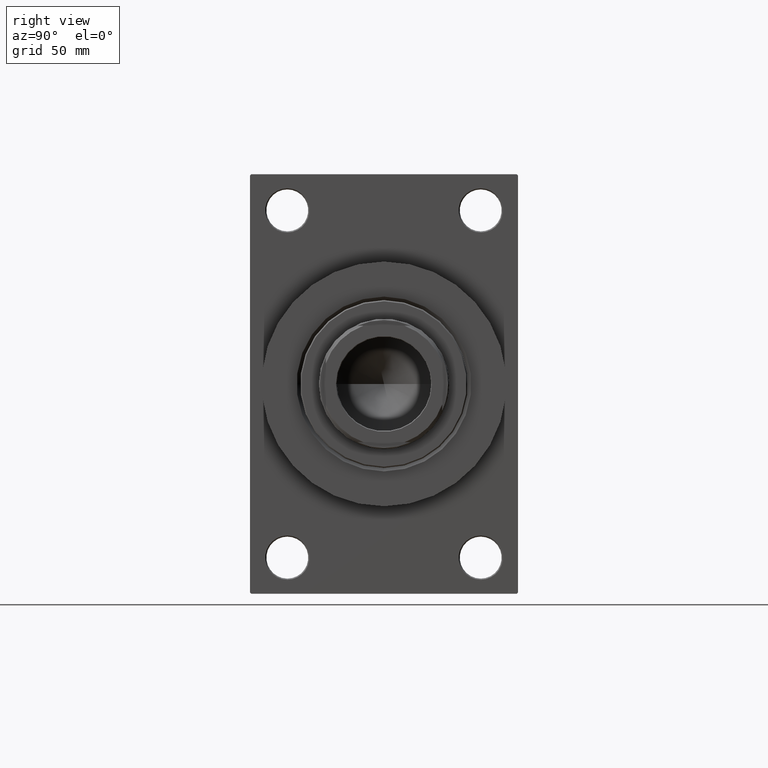
[diagram: clean part render]
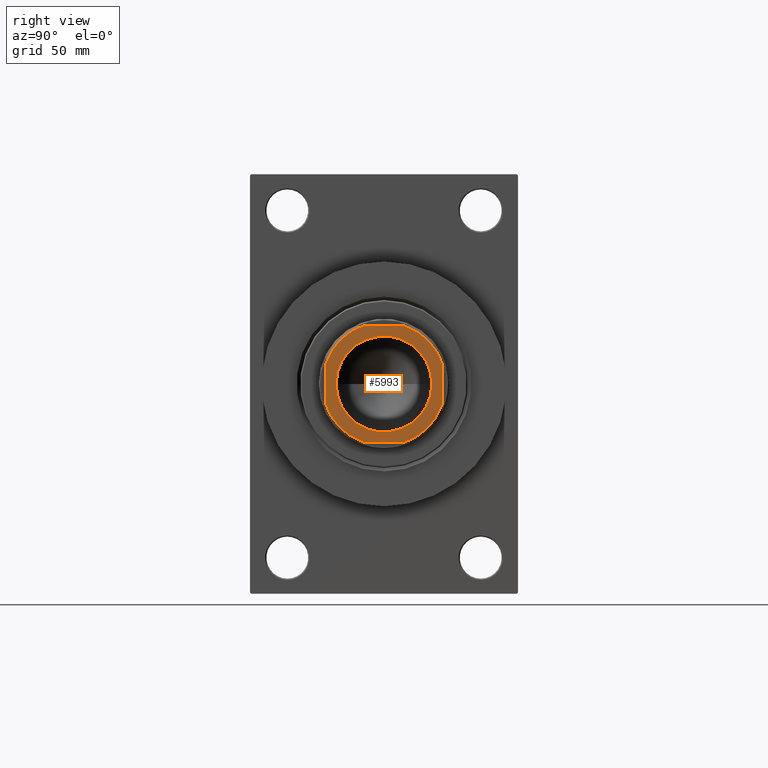
[diagram: same view with one face highlighted and labeled with its STEP entity id]
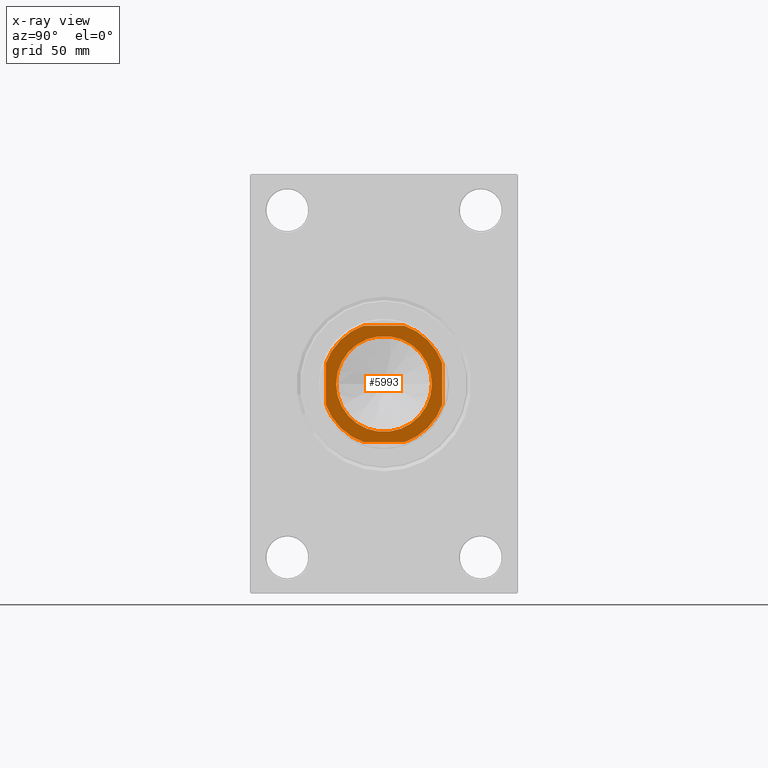
[diagram: x-ray of the same camera — body ghosted, the highlighted face saturated]
A machine part, right view. The second image highlights one B-rep face of the part: STEP entity #5993.
The next image is the same camera in x-ray: the body ghosted, the highlighted face saturated — about 0% of this face is hidden behind the body in this view.
In plain terms, the highlighted planar face has unit normal (1, 0, 0).
Its self-contained STEP definition (entity closure, byte-faithful):
#75 = FACE_BOUND ( 'NONE', #45671, .T. ) ;
#539 = PLANE ( 'NONE',  #19928 ) ;
#1146 = VERTEX_POINT ( 'NONE', #9517 ) ;
#1787 = DIRECTION ( 'NONE',  ( 1.000000000000000000, 0.000000000000000000, 0.000000000000000000 ) ) ;
#2662 = EDGE_CURVE ( 'NONE', #24838, #37136, #30448, .T. ) ;
#2852 = DIRECTION ( 'NONE',  ( -0.000000000000000000, 0.000000000000000000, 1.000000000000000000 ) ) ;
#3350 = CARTESIAN_POINT ( 'NONE',  ( 8.789197915623477186, -25.00000000000000000, 166.0000000000000000 ) ) ;
#3361 = VERTEX_POINT ( 'NONE', #3350 ) ;
#4059 = AXIS2_PLACEMENT_3D ( 'NONE', #10097, #2852, #17572 ) ;
#4290 = EDGE_CURVE ( 'NONE', #20154, #43069, #8299, .T. ) ;
#4392 = FACE_OUTER_BOUND ( 'NONE', #16963, .T. ) ;
#4946 = CARTESIAN_POINT ( 'NONE',  ( 25.00000000000000355, -8.789197915623464752, 166.0000000000000000 ) ) ;
#5544 = CARTESIAN_POINT ( 'NONE',  ( 0.000000000000000000, 0.000000000000000000, 166.0000000000000000 ) ) ;
#5993 = ADVANCED_FACE ( 'NONE', ( #75, #4392 ), #539, .T. ) ;
#7543 = DIRECTION ( 'NONE',  ( 1.000000000000000000, 0.000000000000000000, 0.000000000000000000 ) ) ;
#8299 = CIRCLE ( 'NONE', #24469, 20.54999999999998650 ) ;
#8330 = CARTESIAN_POINT ( 'NONE',  ( -25.00000000000000000, 25.00000000000000000, 166.0000000000000000 ) ) ;
#8705 = CIRCLE ( 'NONE', #14071, 26.50000000000000355 ) ;
#8794 = CARTESIAN_POINT ( 'NONE',  ( 0.000000000000000000, 0.000000000000000000, 166.0000000000000000 ) ) ;
#9031 = DIRECTION ( 'NONE',  ( -1.000000000000000000, -0.000000000000000000, -0.000000000000000000 ) ) ;
#9058 = AXIS2_PLACEMENT_3D ( 'NONE', #34227, #37602, #35884 ) ;
#9517 = CARTESIAN_POINT ( 'NONE',  ( -24.99999999999999645, 8.789197915623519819, 166.0000000000000000 ) ) ;
#10097 = CARTESIAN_POINT ( 'NONE',  ( 0.000000000000000000, 0.000000000000000000, 166.0000000000000000 ) ) ;
#10501 = ORIENTED_EDGE ( 'NONE', *, *, #20542, .T. ) ;
#10519 = CARTESIAN_POINT ( 'NONE',  ( -24.99999999999999645, -8.789197915623461199, 166.0000000000000000 ) ) ;
#11568 = CARTESIAN_POINT ( 'NONE',  ( 20.54999999999998650, 0.000000000000000000, 166.0000000000000000 ) ) ;
#12104 = CARTESIAN_POINT ( 'NONE',  ( 25.00000000000000000, 25.00000000000000000, 166.0000000000000000 ) ) ;
#12204 = DIRECTION ( 'NONE',  ( 1.387778780781445676E-16, -1.000000000000000000, 0.000000000000000000 ) ) ;
#14071 = AXIS2_PLACEMENT_3D ( 'NONE', #19886, #16028, #1787 ) ;
#14366 = ORIENTED_EDGE ( 'NONE', *, *, #4290, .T. ) ;
#15342 = CARTESIAN_POINT ( 'NONE',  ( -25.00000000000000000, 25.00000000000000000, 166.0000000000000000 ) ) ;
#16028 = DIRECTION ( 'NONE',  ( -0.000000000000000000, 0.000000000000000000, 1.000000000000000000 ) ) ;
#16524 = VERTEX_POINT ( 'NONE', #24766 ) ;
#16629 = EDGE_CURVE ( 'NONE', #16524, #3361, #43815, .T. ) ;
#16963 = EDGE_LOOP ( 'NONE', ( #44443, #25701, #17818, #23732, #21046, #44883, #40806, #17445 ) ) ;
#17274 = CARTESIAN_POINT ( 'NONE',  ( 25.00000000000000355, 8.789197915623473634, 166.0000000000000000 ) ) ;
#17445 = ORIENTED_EDGE ( 'NONE', *, *, #34733, .T. ) ;
#17572 = DIRECTION ( 'NONE',  ( 1.000000000000000000, 0.000000000000000000, 0.000000000000000000 ) ) ;
#17818 = ORIENTED_EDGE ( 'NONE', *, *, #39358, .T. ) ;
#19459 = AXIS2_PLACEMENT_3D ( 'NONE', #20771, #27781, #42498 ) ;
#19471 = CIRCLE ( 'NONE', #36446, 26.50000000000001776 ) ;
#19696 = EDGE_CURVE ( 'NONE', #25171, #1146, #19471, .T. ) ;
#19886 = CARTESIAN_POINT ( 'NONE',  ( 0.000000000000000000, 0.000000000000000000, 166.0000000000000000 ) ) ;
#19928 = AXIS2_PLACEMENT_3D ( 'NONE', #29268, #29992, #7543 ) ;
#20154 = VERTEX_POINT ( 'NONE', #21246 ) ;
#20542 = EDGE_CURVE ( 'NONE', #43069, #20154, #27542, .T. ) ;
#20771 = CARTESIAN_POINT ( 'NONE',  ( 0.000000000000000000, 0.000000000000000000, 166.0000000000000000 ) ) ;
#21046 = ORIENTED_EDGE ( 'NONE', *, *, #25820, .T. ) ;
#21246 = CARTESIAN_POINT ( 'NONE',  ( -20.54999999999998650, 2.516649172247808793E-15, 166.0000000000000000 ) ) ;
#23732 = ORIENTED_EDGE ( 'NONE', *, *, #19696, .T. ) ;
#24469 = AXIS2_PLACEMENT_3D ( 'NONE', #5544, #35958, #42936 ) ;
#24766 = CARTESIAN_POINT ( 'NONE',  ( -8.789197915623443436, -25.00000000000000000, 166.0000000000000000 ) ) ;
#24838 = VERTEX_POINT ( 'NONE', #4946 ) ;
#25171 = VERTEX_POINT ( 'NONE', #30889 ) ;
#25701 = ORIENTED_EDGE ( 'NONE', *, *, #39372, .T. ) ;
#25733 = VERTEX_POINT ( 'NONE', #25735 ) ;
#25735 = CARTESIAN_POINT ( 'NONE',  ( 8.789197915623478963, 25.00000000000000000, 166.0000000000000000 ) ) ;
#25820 = EDGE_CURVE ( 'NONE', #1146, #27682, #33702, .T. ) ;
#27542 = CIRCLE ( 'NONE', #9058, 20.54999999999998650 ) ;
#27682 = VERTEX_POINT ( 'NONE', #10519 ) ;
#27781 = DIRECTION ( 'NONE',  ( -0.000000000000000000, 0.000000000000000000, 1.000000000000000000 ) ) ;
#29268 = CARTESIAN_POINT ( 'NONE',  ( 0.000000000000000000, 0.000000000000000000, 166.0000000000000000 ) ) ;
#29495 = CIRCLE ( 'NONE', #4059, 26.49999999999999289 ) ;
#29992 = DIRECTION ( 'NONE',  ( -0.000000000000000000, 0.000000000000000000, 1.000000000000000000 ) ) ;
#30286 = VECTOR ( 'NONE', #9031, 1000.000000000000000 ) ;
#30448 = LINE ( 'NONE', #12104, #30622 ) ;
#30622 = VECTOR ( 'NONE', #37936, 1000.000000000000000 ) ;
#30889 = CARTESIAN_POINT ( 'NONE',  ( -8.789197915623512714, 25.00000000000000000, 166.0000000000000000 ) ) ;
#32475 = VECTOR ( 'NONE', #33688, 1000.000000000000000 ) ;
#33688 = DIRECTION ( 'NONE',  ( 1.000000000000000000, 0.000000000000000000, 0.000000000000000000 ) ) ;
#33702 = LINE ( 'NONE', #15342, #45357 ) ;
#34227 = CARTESIAN_POINT ( 'NONE',  ( 0.000000000000000000, 0.000000000000000000, 166.0000000000000000 ) ) ;
#34733 = EDGE_CURVE ( 'NONE', #3361, #24838, #41815, .T. ) ;
#35181 = EDGE_CURVE ( 'NONE', #27682, #16524, #29495, .T. ) ;
#35884 = DIRECTION ( 'NONE',  ( 1.000000000000000000, 0.000000000000000000, 0.000000000000000000 ) ) ;
#35958 = DIRECTION ( 'NONE',  ( 0.000000000000000000, -0.000000000000000000, -1.000000000000000000 ) ) ;
#36446 = AXIS2_PLACEMENT_3D ( 'NONE', #8794, #47373, #43745 ) ;
#37136 = VERTEX_POINT ( 'NONE', #17274 ) ;
#37602 = DIRECTION ( 'NONE',  ( 0.000000000000000000, -0.000000000000000000, -1.000000000000000000 ) ) ;
#37936 = DIRECTION ( 'NONE',  ( -1.387778780781445676E-16, 1.000000000000000000, -0.000000000000000000 ) ) ;
#39358 = EDGE_CURVE ( 'NONE', #25733, #25171, #41633, .T. ) ;
#39372 = EDGE_CURVE ( 'NONE', #37136, #25733, #8705, .T. ) ;
#40205 = CARTESIAN_POINT ( 'NONE',  ( -24.99999999999999289, -25.00000000000000000, 166.0000000000000000 ) ) ;
#40806 = ORIENTED_EDGE ( 'NONE', *, *, #16629, .T. ) ;
#41633 = LINE ( 'NONE', #8330, #30286 ) ;
#41815 = CIRCLE ( 'NONE', #19459, 26.50000000000000355 ) ;
#42498 = DIRECTION ( 'NONE',  ( 1.000000000000000000, 0.000000000000000000, 0.000000000000000000 ) ) ;
#42936 = DIRECTION ( 'NONE',  ( 1.000000000000000000, 0.000000000000000000, 0.000000000000000000 ) ) ;
#43069 = VERTEX_POINT ( 'NONE', #11568 ) ;
#43745 = DIRECTION ( 'NONE',  ( 1.000000000000000000, 0.000000000000000000, 0.000000000000000000 ) ) ;
#43815 = LINE ( 'NONE', #40205, #32475 ) ;
#44443 = ORIENTED_EDGE ( 'NONE', *, *, #2662, .T. ) ;
#44883 = ORIENTED_EDGE ( 'NONE', *, *, #35181, .T. ) ;
#45357 = VECTOR ( 'NONE', #12204, 1000.000000000000000 ) ;
#45671 = EDGE_LOOP ( 'NONE', ( #10501, #14366 ) ) ;
#47373 = DIRECTION ( 'NONE',  ( -0.000000000000000000, 0.000000000000000000, 1.000000000000000000 ) ) ;